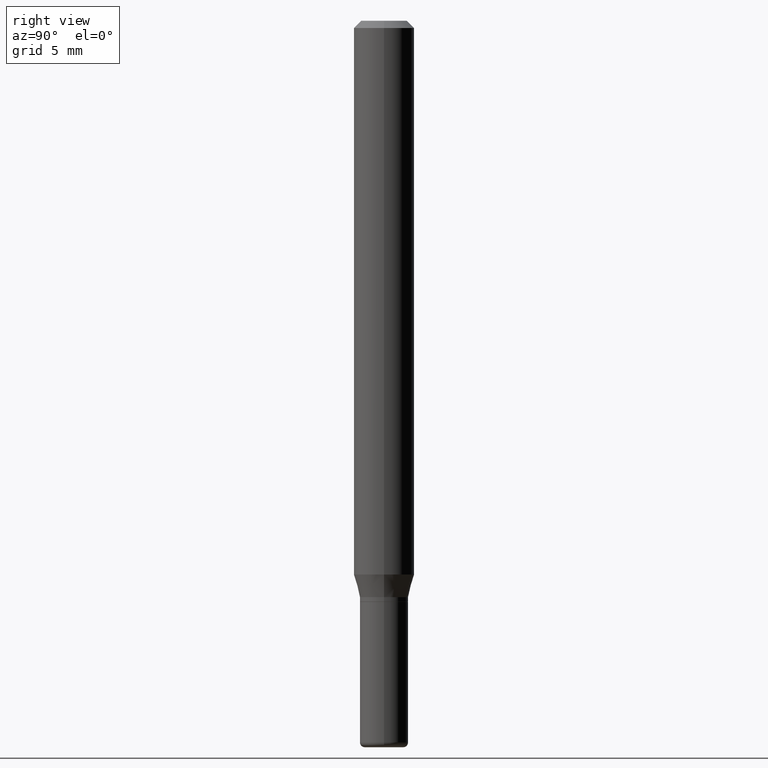
[diagram: clean part render]
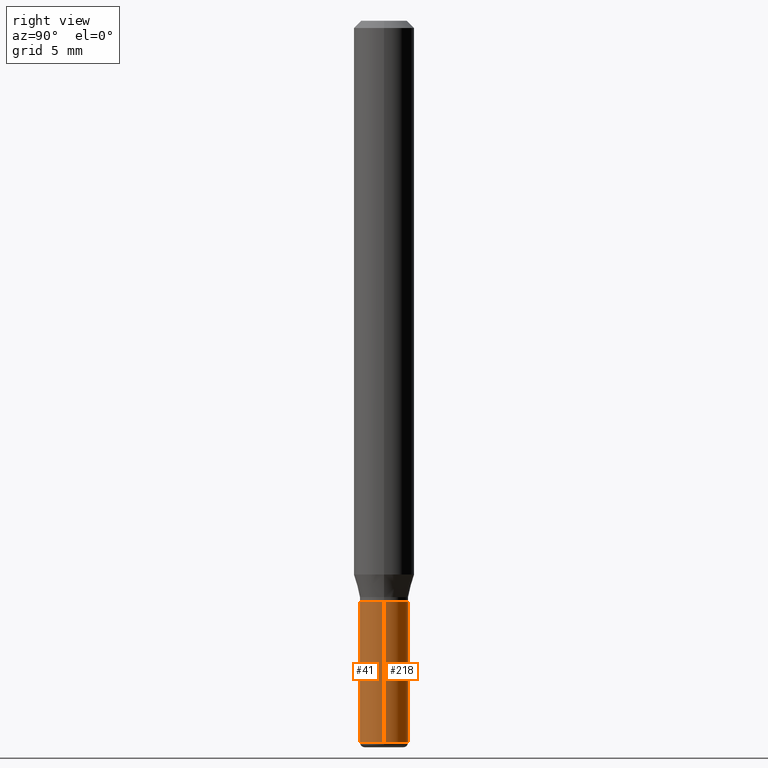
[diagram: same view with one multi-face feature highlighted, each face labeled with its STEP entity id]
A machine part, right view. The highlighted faces form ONE feature: a constant-radius fillet chain: 2 tangent blend faces with common blend radius 1.27 mm. The faces share edges in the B-rep.
Their STEP definitions:
[1] entity #218 (Cylinder):
#19 = CARTESIAN_POINT ( 'NONE',  ( -0.05000000000000000278, -4.340771032863981152E-15, -1.200000000000000178 ) ) ;
#62 = EDGE_CURVE ( 'NONE', #454, #428, #369, .T. ) ;
#73 = CIRCLE ( 'NONE', #318, 0.04999999999999995420 ) ;
#75 = DIRECTION ( 'NONE',  ( 1.000000000000000000, -6.982962677686261189E-15, 0.000000000000000000 ) ) ;
#96 = DIRECTION ( 'NONE',  ( -2.445468806185136597E-29, 3.491481338843145583E-15, 1.000000000000000000 ) ) ;
#114 = LINE ( 'NONE', #463, #256 ) ;
#130 = DIRECTION ( 'NONE',  ( 1.000000000000000000, -6.982962677686274599E-15, 0.000000000000000000 ) ) ;
#158 = CARTESIAN_POINT ( 'NONE',  ( 3.643748521215853910E-29, -5.202307194876288105E-15, -1.490000000000000213 ) ) ;
#164 = ORIENTED_EDGE ( 'NONE', *, *, #506, .T. ) ;
#170 = DIRECTION ( 'NONE',  ( 1.000000000000000000, -6.982962677686265922E-15, 4.876176775795935232E-29 ) ) ;
#174 = EDGE_CURVE ( 'NONE', #249, #428, #210, .T. ) ;
#179 = CARTESIAN_POINT ( 'NONE',  ( 0.04999999999999995420, -5.551455328760600652E-15, -1.490000000000000213 ) ) ;
#192 = ORIENTED_EDGE ( 'NONE', *, *, #319, .F. ) ;
#208 = VERTEX_POINT ( 'NONE', #179 ) ;
#210 = LINE ( 'NONE', #367, #296 ) ;
#215 = CARTESIAN_POINT ( 'NONE',  ( -0.04999999999999995420, -4.340771032863981940E-15, -1.490000000000000213 ) ) ;
#218 = ADVANCED_FACE ( 'NONE', ( #491 ), #251, .T. ) ;
#249 = VERTEX_POINT ( 'NONE', #215 ) ;
#251 = CYLINDRICAL_SURFACE ( 'NONE', #266, 0.04999999999999998196 ) ;
#256 = VECTOR ( 'NONE', #341, 39.37007874015748143 ) ;
#266 = AXIS2_PLACEMENT_3D ( 'NONE', #456, #96, #170 ) ;
#296 = VECTOR ( 'NONE', #362, 39.37007874015748143 ) ;
#308 = CARTESIAN_POINT ( 'NONE',  ( 2.934562567422164701E-29, -4.189777606611775804E-15, -1.200000000000000178 ) ) ;
#318 = AXIS2_PLACEMENT_3D ( 'NONE', #158, #429, #75 ) ;
#319 = EDGE_CURVE ( 'NONE', #208, #454, #114, .T. ) ;
#339 = ORIENTED_EDGE ( 'NONE', *, *, #174, .T. ) ;
#341 = DIRECTION ( 'NONE',  ( -2.445468806185136877E-29, 3.491481338843145188E-15, 1.000000000000000000 ) ) ;
#362 = DIRECTION ( 'NONE',  ( -2.445468806185136877E-29, 3.491481338843145188E-15, 1.000000000000000000 ) ) ;
#367 = CARTESIAN_POINT ( 'NONE',  ( -0.04999999999999998196, 3.552713678800499647E-16, -2.459467545127451910E-30 ) ) ;
#369 = CIRCLE ( 'NONE', #411, 0.05000000000000000278 ) ;
#391 = CARTESIAN_POINT ( 'NONE',  ( 0.05000000000000000278, -4.538925740496089139E-15, -1.200000000000000178 ) ) ;
#399 = DIRECTION ( 'NONE',  ( -2.445468806185136597E-29, 3.491481338843145583E-15, 1.000000000000000000 ) ) ;
#411 = AXIS2_PLACEMENT_3D ( 'NONE', #308, #399, #130 ) ;
#428 = VERTEX_POINT ( 'NONE', #19 ) ;
#429 = DIRECTION ( 'NONE',  ( -2.445468806185136597E-29, 3.491481338843145583E-15, 1.000000000000000000 ) ) ;
#454 = VERTEX_POINT ( 'NONE', #391 ) ;
#456 = CARTESIAN_POINT ( 'NONE',  ( 0.000000000000000000, 0.000000000000000000, 0.000000000000000000 ) ) ;
#463 = CARTESIAN_POINT ( 'NONE',  ( 0.04999999999999998196, -3.491481338843131876E-16, 2.438088387897966845E-30 ) ) ;
#491 = FACE_OUTER_BOUND ( 'NONE', #493, .T. ) ;
#493 = EDGE_LOOP ( 'NONE', ( #164, #339, #518, #192 ) ) ;
#506 = EDGE_CURVE ( 'NONE', #208, #249, #73, .T. ) ;
#518 = ORIENTED_EDGE ( 'NONE', *, *, #62, .F. ) ;
[2] entity #41 (Cylinder):
#19 = CARTESIAN_POINT ( 'NONE',  ( -0.05000000000000000278, -4.340771032863981152E-15, -1.200000000000000178 ) ) ;
#22 = EDGE_CURVE ( 'NONE', #249, #208, #81, .T. ) ;
#40 = CARTESIAN_POINT ( 'NONE',  ( 0.000000000000000000, 0.000000000000000000, 0.000000000000000000 ) ) ;
#41 = ADVANCED_FACE ( 'NONE', ( #195 ), #124, .T. ) ;
#64 = AXIS2_PLACEMENT_3D ( 'NONE', #40, #242, #485 ) ;
#78 = ORIENTED_EDGE ( 'NONE', *, *, #174, .F. ) ;
#81 = CIRCLE ( 'NONE', #149, 0.04999999999999995420 ) ;
#114 = LINE ( 'NONE', #463, #256 ) ;
#124 = CYLINDRICAL_SURFACE ( 'NONE', #64, 0.04999999999999998196 ) ;
#148 = ORIENTED_EDGE ( 'NONE', *, *, #319, .T. ) ;
#149 = AXIS2_PLACEMENT_3D ( 'NONE', #314, #513, #203 ) ;
#174 = EDGE_CURVE ( 'NONE', #249, #428, #210, .T. ) ;
#179 = CARTESIAN_POINT ( 'NONE',  ( 0.04999999999999995420, -5.551455328760600652E-15, -1.490000000000000213 ) ) ;
#195 = FACE_OUTER_BOUND ( 'NONE', #205, .T. ) ;
#203 = DIRECTION ( 'NONE',  ( 1.000000000000000000, -6.982962677686261189E-15, 0.000000000000000000 ) ) ;
#205 = EDGE_LOOP ( 'NONE', ( #78, #363, #148, #241 ) ) ;
#208 = VERTEX_POINT ( 'NONE', #179 ) ;
#210 = LINE ( 'NONE', #367, #296 ) ;
#215 = CARTESIAN_POINT ( 'NONE',  ( -0.04999999999999995420, -4.340771032863981940E-15, -1.490000000000000213 ) ) ;
#224 = DIRECTION ( 'NONE',  ( -2.445468806185136597E-29, 3.491481338843145583E-15, 1.000000000000000000 ) ) ;
#226 = CARTESIAN_POINT ( 'NONE',  ( 2.934562567422164701E-29, -4.189777606611775804E-15, -1.200000000000000178 ) ) ;
#241 = ORIENTED_EDGE ( 'NONE', *, *, #301, .F. ) ;
#242 = DIRECTION ( 'NONE',  ( -2.445468806185136597E-29, 3.491481338843145583E-15, 1.000000000000000000 ) ) ;
#249 = VERTEX_POINT ( 'NONE', #215 ) ;
#256 = VECTOR ( 'NONE', #341, 39.37007874015748143 ) ;
#296 = VECTOR ( 'NONE', #362, 39.37007874015748143 ) ;
#301 = EDGE_CURVE ( 'NONE', #428, #454, #484, .T. ) ;
#314 = CARTESIAN_POINT ( 'NONE',  ( 3.643748521215853910E-29, -5.202307194876288105E-15, -1.490000000000000213 ) ) ;
#319 = EDGE_CURVE ( 'NONE', #208, #454, #114, .T. ) ;
#341 = DIRECTION ( 'NONE',  ( -2.445468806185136877E-29, 3.491481338843145188E-15, 1.000000000000000000 ) ) ;
#362 = DIRECTION ( 'NONE',  ( -2.445468806185136877E-29, 3.491481338843145188E-15, 1.000000000000000000 ) ) ;
#363 = ORIENTED_EDGE ( 'NONE', *, *, #22, .T. ) ;
#367 = CARTESIAN_POINT ( 'NONE',  ( -0.04999999999999998196, 3.552713678800499647E-16, -2.459467545127451910E-30 ) ) ;
#385 = DIRECTION ( 'NONE',  ( 1.000000000000000000, -6.982962677686274599E-15, 0.000000000000000000 ) ) ;
#391 = CARTESIAN_POINT ( 'NONE',  ( 0.05000000000000000278, -4.538925740496089139E-15, -1.200000000000000178 ) ) ;
#428 = VERTEX_POINT ( 'NONE', #19 ) ;
#454 = VERTEX_POINT ( 'NONE', #391 ) ;
#463 = CARTESIAN_POINT ( 'NONE',  ( 0.04999999999999998196, -3.491481338843131876E-16, 2.438088387897966845E-30 ) ) ;
#484 = CIRCLE ( 'NONE', #509, 0.05000000000000000278 ) ;
#485 = DIRECTION ( 'NONE',  ( 1.000000000000000000, -6.982962677686265922E-15, 4.876176775795935232E-29 ) ) ;
#509 = AXIS2_PLACEMENT_3D ( 'NONE', #226, #224, #385 ) ;
#513 = DIRECTION ( 'NONE',  ( -2.445468806185136597E-29, 3.491481338843145583E-15, 1.000000000000000000 ) ) ;